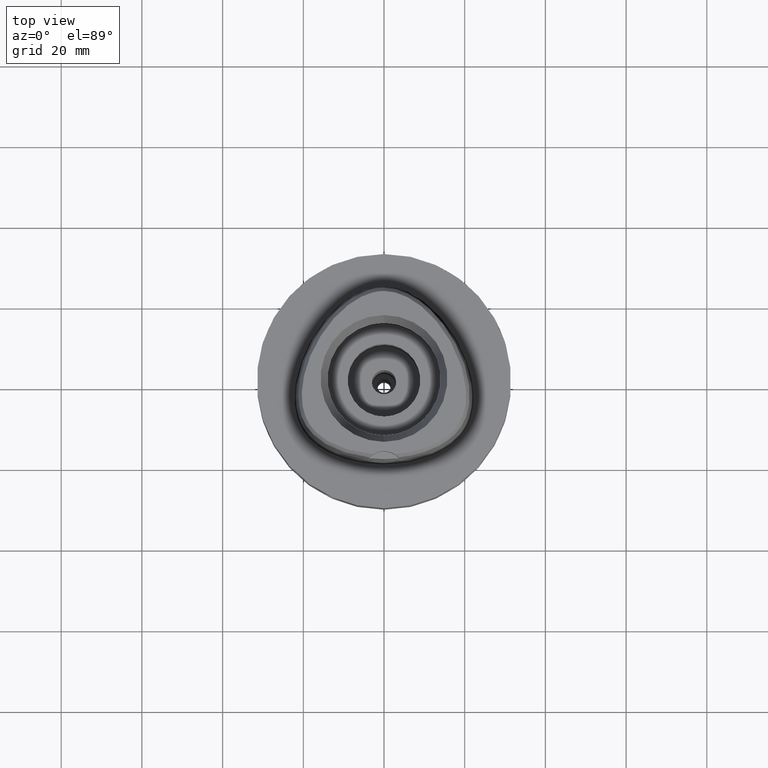
[diagram: clean part render]
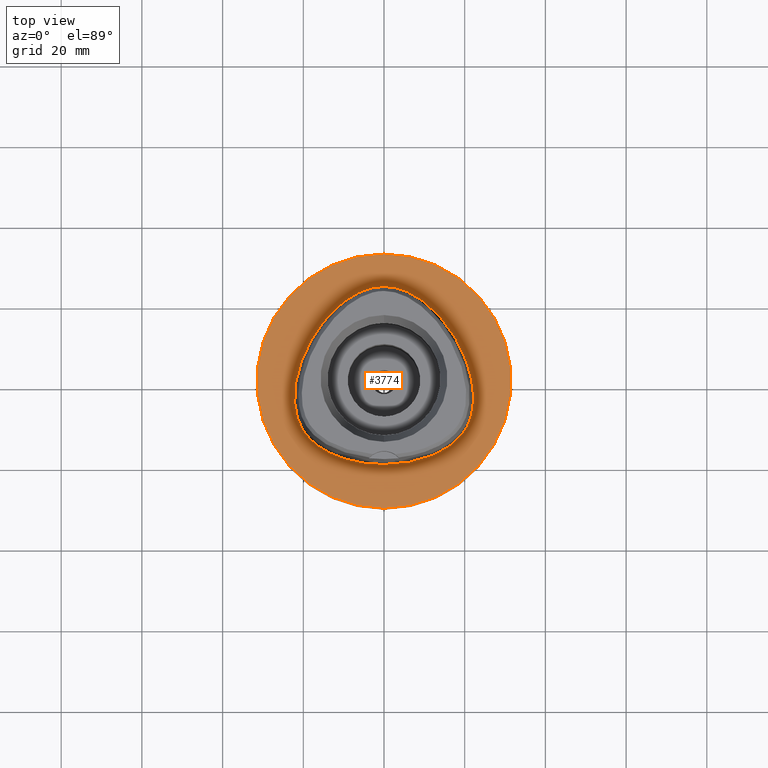
[diagram: same view with one face highlighted and labeled with its STEP entity id]
A machine part, top view. The second image highlights one B-rep face of the part: STEP entity #3774.
In plain terms, the highlighted planar face has unit normal (0, 0, -1).
Its self-contained STEP definition (entity closure, byte-faithful):
#28 = CARTESIAN_POINT ( 'NONE',  ( -20.34961798554900270, -11.74885742186050130, 8.353619174433085659E-10 ) ) ;
#182 = CARTESIAN_POINT ( 'NONE',  ( 18.06826693438258147, 10.43171877836766903, -2.257403693009876755E-06 ) ) ;
#208 = CARTESIAN_POINT ( 'NONE',  ( 16.95889176096739703, -15.67838871642536525, -2.257403693009876755E-06 ) ) ;
#405 = CARTESIAN_POINT ( 'NONE',  ( -20.93173252209782120, -10.60431640624572935, 8.353619174433085659E-10 ) ) ;
#428 = CARTESIAN_POINT ( 'NONE',  ( -6.341471019208213988, -20.29812499998185871, 8.353619174433085659E-10 ) ) ;
#500 = DIRECTION ( 'NONE',  ( 0.0000000000000000000, -1.000000000000000000, 0.0000000000000000000 ) ) ;
#520 = VERTEX_POINT ( 'NONE', #1243 ) ;
#551 = CARTESIAN_POINT ( 'NONE',  ( 21.55524831438047428, -8.996025406759448728, -2.257403693009876755E-06 ) ) ;
#640 = CARTESIAN_POINT ( 'NONE',  ( 0.0000000000000000000, 1.295860010517999870E-14, 0.0000000000000000000 ) ) ;
#776 = CARTESIAN_POINT ( 'NONE',  ( -21.97832647784336402, -0.2810937500037144487, 8.353619174433085659E-10 ) ) ;
#933 = B_SPLINE_CURVE_WITH_KNOTS ( 'NONE', 3,
 ( #1240, #3495, #2695, #4223, #2363, #3147, #1944, #1593, #4659, #776, #3123, #1216, #3428, #405, #28, #2715, #1166, #2740, #2320, #4247, #428, #4681, #4181 ),
 .UNSPECIFIED., .F., .F.,
 ( 4, 1, 1, 1, 1, 1, 1, 1, 1, 1, 1, 1, 1, 1, 1, 1, 1, 1, 1, 1, 4 ),
 ( 0.0000000000000000000, 0.04166666666739000241, 0.08333333333401000964, 0.1250000000005999923, 0.1666666666673000119, 0.2500000000004999889, 0.3333333333337000215, 0.4166666666671000052, 0.5000000000002999823, 0.5416666666668999985, 0.5833333333335000148, 0.6250000000001999512, 0.6458333333333999837, 0.6666666666667999674, 0.6875000000001000311, 0.7083333333333999837, 0.7500000000000000000, 0.7916666666667000474, 0.8333333333332000326, 0.9166666666666000163, 1.000000000000000000 ),
 .UNSPECIFIED. ) ;
#960 = DIRECTION ( 'NONE',  ( 0.0000000000000000000, 1.000000000000000000, 0.0000000000000000000 ) ) ;
#969 = CIRCLE ( 'NONE', #1443, 31.50000000000000000 ) ;
#989 = VERTEX_POINT ( 'NONE', #3020 ) ;
#1163 = DIRECTION ( 'NONE',  ( 0.0000000000000000000, -1.000000000000000000, 0.0000000000000000000 ) ) ;
#1166 = CARTESIAN_POINT ( 'NONE',  ( -18.56841065140747205, -14.16937988279482497, 8.353619174433085659E-10 ) ) ;
#1214 = CARTESIAN_POINT ( 'NONE',  ( 0.0000000000000000000, 1.295860010517999870E-14, 0.0000000000000000000 ) ) ;
#1216 = CARTESIAN_POINT ( 'NONE',  ( -22.05732874320137427, -6.847636718746362483, 8.353619174433085659E-10 ) ) ;
#1240 = CARTESIAN_POINT ( 'NONE',  ( 4.706463693153999761E-11, 23.47499999999000053, 4.958996176658999310E-14 ) ) ;
#1242 = CARTESIAN_POINT ( 'NONE',  ( -8.194934511013000151E-12, -20.67499999999999716, 5.251354906476999271E-14 ) ) ;
#1243 = CARTESIAN_POINT ( 'NONE',  ( 0.0000000000000000000, 31.50000000000000000, 0.0000000000000000000 ) ) ;
#1312 = VERTEX_POINT ( 'NONE', #1242 ) ;
#1316 = DIRECTION ( 'NONE',  ( 0.0000000000000000000, 0.0000000000000000000, -1.000000000000000000 ) ) ;
#1346 = CARTESIAN_POINT ( 'NONE',  ( 0.8548392463072987946, 23.47500005643788512, -2.257403693009876755E-06 ) ) ;
#1358 = DIRECTION ( 'NONE',  ( 0.0000000000000000000, 0.0000000000000000000, -1.000000000000000000 ) ) ;
#1375 = CARTESIAN_POINT ( 'NONE',  ( 5.098437038348195394, 22.52602544323804779, -2.257403693009876755E-06 ) ) ;
#1399 = CARTESIAN_POINT ( 'NONE',  ( 22.05732879931721158, -6.847636726811746399, -2.257403693009876755E-06 ) ) ;
#1443 = AXIS2_PLACEMENT_3D ( 'NONE', #1214, #2385, #1163 ) ;
#1511 = EDGE_CURVE ( 'NONE', #1312, #4691, #2015, .T. ) ;
#1593 = CARTESIAN_POINT ( 'NONE',  ( -18.06826688524663638, 10.43171874999720039, 8.353619174433085659E-10 ) ) ;
#1607 = ORIENTED_EDGE ( 'NONE', *, *, #3068, .F. ) ;
#1613 = AXIS2_PLACEMENT_3D ( 'NONE', #640, #1358, #960 ) ;
#1801 = CARTESIAN_POINT ( 'NONE',  ( 2.113823676421398456, -20.67500005643023897, -2.257403693009876332E-06 ) ) ;
#1883 = EDGE_CURVE ( 'NONE', #989, #520, #969, .T. ) ;
#1944 = CARTESIAN_POINT ( 'NONE',  ( -14.40795638956261193, 15.64093749998626848, 8.353619174433085659E-10 ) ) ;
#2010 = AXIS2_PLACEMENT_3D ( 'NONE', #4325, #1316, #500 ) ;
#2015 = B_SPLINE_CURVE_WITH_KNOTS ( 'NONE', 3,
 ( #2465, #1801, #3620, #3224, #3305, #208, #4071, #2949, #4839, #3275, #551, #1399, #2069, #4863, #3595, #182, #4433, #4813, #3247, #1375, #2923, #1346, #2870 ),
 .UNSPECIFIED., .F., .F.,
 ( 4, 1, 1, 1, 1, 1, 1, 1, 1, 1, 1, 1, 1, 1, 1, 1, 1, 1, 1, 1, 4 ),
 ( 0.0000000000000000000, 0.08333333333341000349, 0.1666666666667000196, 0.2083333333333000081, 0.2500000000000000000, 0.2916666666666999919, 0.3125000000000000000, 0.3333333333333000081, 0.3541666666666000163, 0.3749999999998999689, 0.4166666666666000163, 0.4583333333332000326, 0.4999999999998999689, 0.5833333333331000015, 0.6666666666664999852, 0.7499999999998000488, 0.8333333333329999704, 0.8749999999997000177, 0.9166666666664000651, 0.9583333333329999704, 1.000000000000000000 ),
 .UNSPECIFIED. ) ;
#2069 = CARTESIAN_POINT ( 'NONE',  ( 22.24453913515386816, -4.100468749668122470, -2.257403693009876755E-06 ) ) ;
#2090 = CIRCLE ( 'NONE', #1613, 31.50000000000000000 ) ;
#2320 = CARTESIAN_POINT ( 'NONE',  ( -14.67337964418367413, -17.21410156248258261, 8.353619174433085659E-10 ) ) ;
#2363 = CARTESIAN_POINT ( 'NONE',  ( -7.571159434340460237, 21.31457031248443812, 8.353619174433085659E-10 ) ) ;
#2385 = DIRECTION ( 'NONE',  ( 0.0000000000000000000, 0.0000000000000000000, -1.000000000000000000 ) ) ;
#2465 = CARTESIAN_POINT ( 'NONE',  ( -8.194934511013000151E-12, -20.67499999999999716, 5.251354906476999271E-14 ) ) ;
#2695 = CARTESIAN_POINT ( 'NONE',  ( -2.564517726953151833, 23.29328124997790539, 8.353619174433085659E-10 ) ) ;
#2700 = EDGE_LOOP ( 'NONE', ( #1607, #4284 ) ) ;
#2715 = CARTESIAN_POINT ( 'NONE',  ( -19.64947365861808493, -12.82525390623848693, 8.353619174433085659E-10 ) ) ;
#2740 = CARTESIAN_POINT ( 'NONE',  ( -16.95889172592378458, -15.67838867185177776, 8.353619174433085659E-10 ) ) ;
#2870 = CARTESIAN_POINT ( 'NONE',  ( 4.706463693153999761E-11, 23.47499999999000053, 4.958996176658999310E-14 ) ) ;
#2923 = CARTESIAN_POINT ( 'NONE',  ( 2.564517738556170379, 23.29328130556553234, -2.257403693009876755E-06 ) ) ;
#2949 = CARTESIAN_POINT ( 'NONE',  ( 19.64947370436402352, -12.82525393948719383, -2.257403693009876755E-06 ) ) ;
#3020 = CARTESIAN_POINT ( 'NONE',  ( 0.0000000000000000000, -31.50000000000000000, 0.0000000000000000000 ) ) ;
#3068 = EDGE_CURVE ( 'NONE', #520, #989, #2090, .T. ) ;
#3123 = CARTESIAN_POINT ( 'NONE',  ( -22.24453907852347001, -4.100468749999545359, 8.353619174433085659E-10 ) ) ;
#3147 = CARTESIAN_POINT ( 'NONE',  ( -10.74572891058169333, 19.17433593748392440, 8.353619174433085659E-10 ) ) ;
#3169 = FACE_OUTER_BOUND ( 'NONE', #2700, .T. ) ;
#3224 = CARTESIAN_POINT ( 'NONE',  ( 11.23259758666867647, -18.89324224082648129, -2.257403693009876755E-06 ) ) ;
#3247 = CARTESIAN_POINT ( 'NONE',  ( 7.571159462941754903, 21.31457036135014604, -2.257403693009876755E-06 ) ) ;
#3275 = CARTESIAN_POINT ( 'NONE',  ( 20.93173257376113838, -10.60431642923025208, -2.257403693009876755E-06 ) ) ;
#3305 = CARTESIAN_POINT ( 'NONE',  ( 14.67337967221219053, -17.21410161168804720, -2.257403693009876755E-06 ) ) ;
#3428 = CARTESIAN_POINT ( 'NONE',  ( -21.55524826007799533, -8.996025390618877182, 8.353619174433085659E-10 ) ) ;
#3495 = CARTESIAN_POINT ( 'NONE',  ( -0.8548392423017804331, 23.47499999998123243, 8.353619174433085659E-10 ) ) ;
#3527 = ORIENTED_EDGE ( 'NONE', *, *, #3648, .F. ) ;
#3595 = CARTESIAN_POINT ( 'NONE',  ( 20.74942746218772527, 4.657187519241463569, -2.257403693009876755E-06 ) ) ;
#3620 = CARTESIAN_POINT ( 'NONE',  ( 6.341471029239261981, -20.29812505586689042, -2.257403693009877179E-06 ) ) ;
#3648 = EDGE_CURVE ( 'NONE', #4691, #1312, #933, .T. ) ;
#3772 = EDGE_LOOP ( 'NONE', ( #3527, #4558 ) ) ;
#3774 = ADVANCED_FACE ( 'NONE', ( #3169, #4294 ), #3963, .F. ) ;
#3963 = PLANE ( 'NONE',  #2010 ) ;
#4071 = CARTESIAN_POINT ( 'NONE',  ( 18.56841069253299636, -14.16937992174607963, -2.257403693009876755E-06 ) ) ;
#4181 = CARTESIAN_POINT ( 'NONE',  ( -8.194934511013000151E-12, -20.67499999999999716, 5.251354906476999271E-14 ) ) ;
#4223 = CARTESIAN_POINT ( 'NONE',  ( -5.098437017275380789, 22.52602539060650599, 8.353619174433085659E-10 ) ) ;
#4247 = CARTESIAN_POINT ( 'NONE',  ( -11.23259756727071235, -18.89324218748449269, 8.353619174433085659E-10 ) ) ;
#4284 = ORIENTED_EDGE ( 'NONE', *, *, #1883, .F. ) ;
#4294 = FACE_BOUND ( 'NONE', #3772, .T. ) ;
#4325 = CARTESIAN_POINT ( 'NONE',  ( 0.0000000000000000000, 1.224646799146999965E-14, 0.0000000000000000000 ) ) ;
#4433 = CARTESIAN_POINT ( 'NONE',  ( 14.40795643293791528, 15.64093753662044328, -2.257403693009876755E-06 ) ) ;
#4558 = ORIENTED_EDGE ( 'NONE', *, *, #1511, .F. ) ;
#4659 = CARTESIAN_POINT ( 'NONE',  ( -20.74942740877217418, 4.657187499992573088, 8.353619174433085659E-10 ) ) ;
#4681 = CARTESIAN_POINT ( 'NONE',  ( -2.113823673062435571, -20.67499999998221938, 8.353619174433085659E-10 ) ) ;
#4691 = VERTEX_POINT ( 'NONE', #4751 ) ;
#4751 = CARTESIAN_POINT ( 'NONE',  ( 4.706463693153999761E-11, 23.47499999999000053, 4.958996176658999310E-14 ) ) ;
#4813 = CARTESIAN_POINT ( 'NONE',  ( 10.74572894707703519, 19.17433598095354341, -2.257403693009876755E-06 ) ) ;
#4839 = CARTESIAN_POINT ( 'NONE',  ( 20.34961803452965157, -11.74885745014128702, -2.257403693009876755E-06 ) ) ;
#4863 = CARTESIAN_POINT ( 'NONE',  ( 21.97832653374661049, -0.2810937401266931923, -2.257403693009876755E-06 ) ) ;